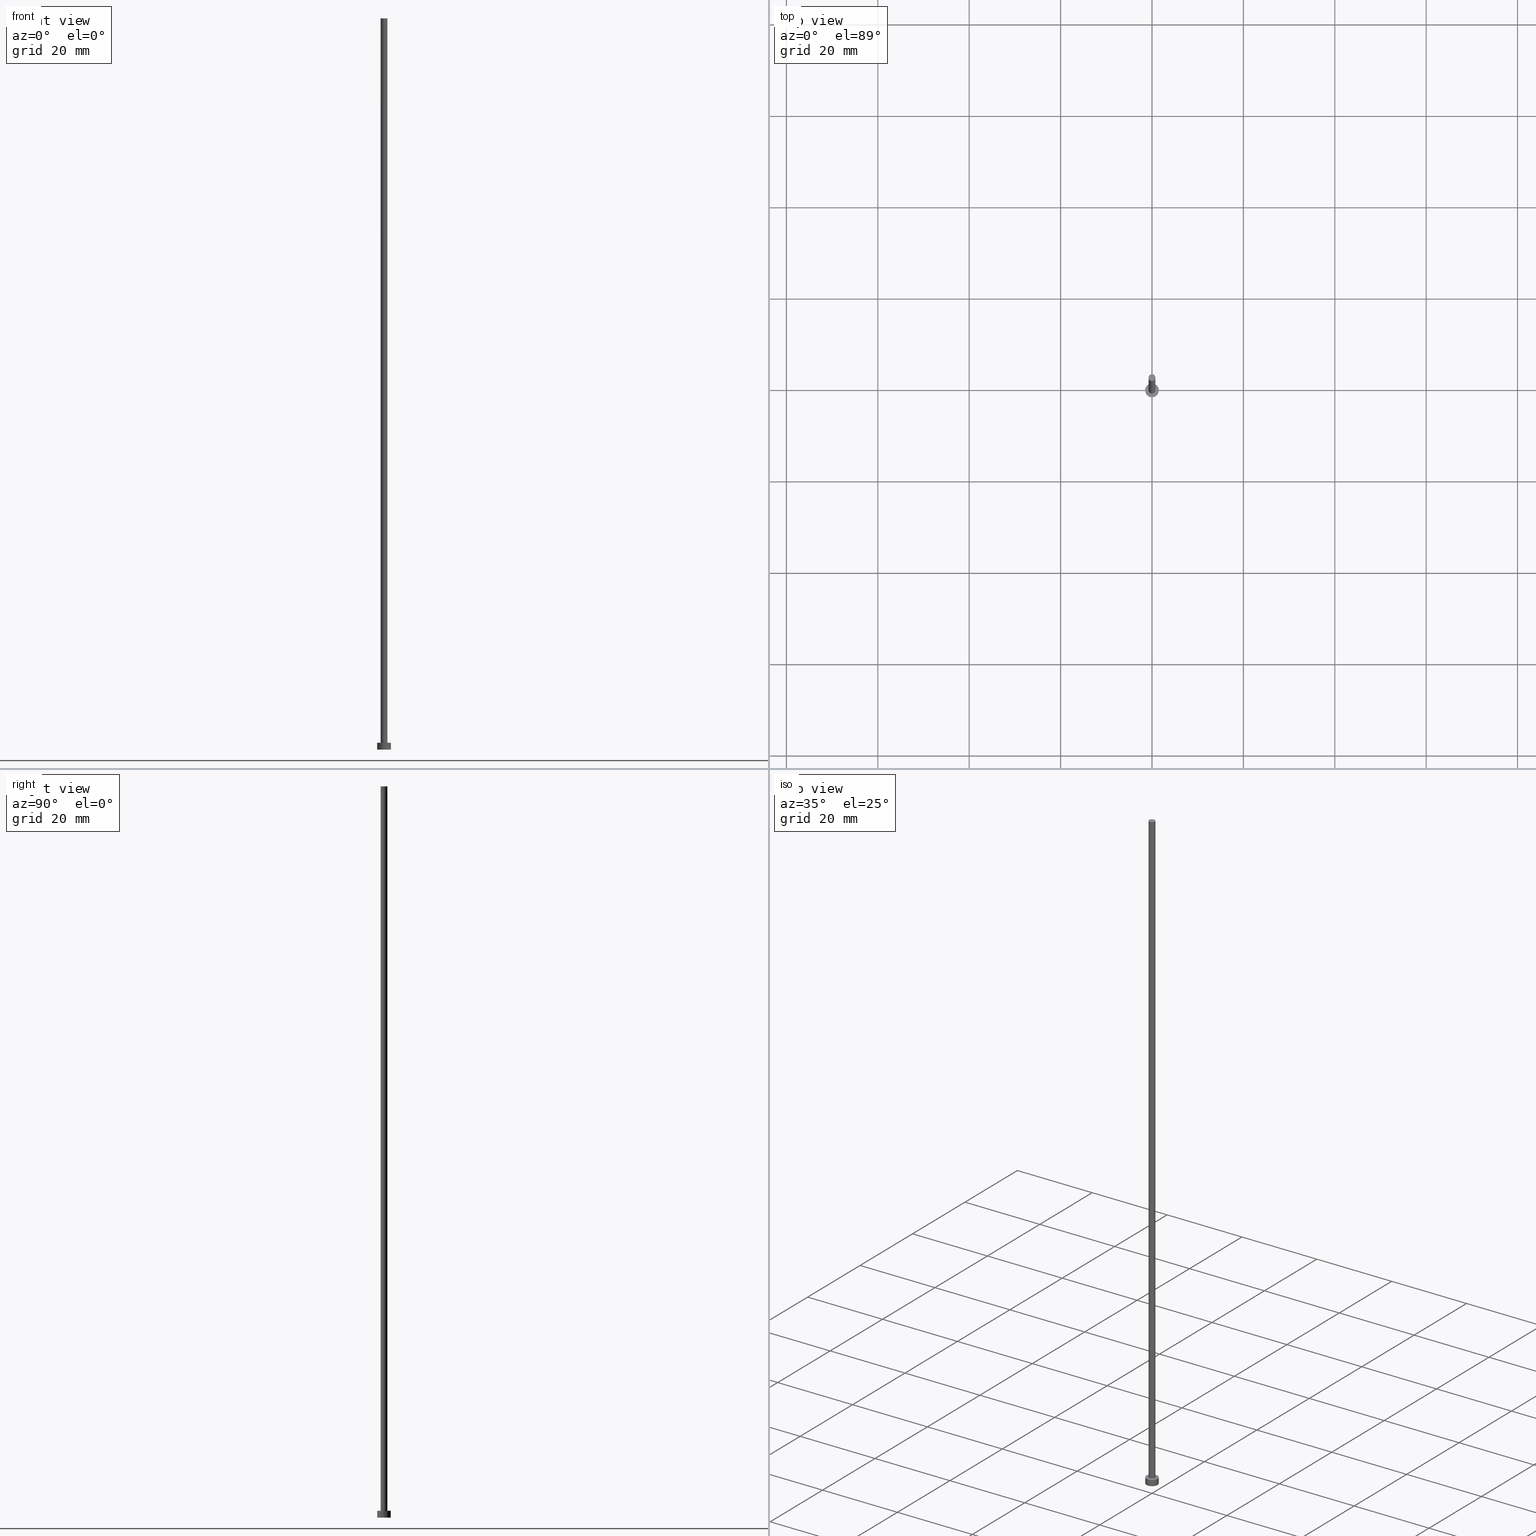
[diagram: canonical four-view strip — front | top / right | iso, engineering-drawing reading convention]
A machine part, canonical four-view strip (front | top / right | iso — engineering-drawing reading convention). The complete STEP part file that produces these views, byte-faithful:
ISO-10303-21;
HEADER;
FILE_DESCRIPTION (( 'STEP AP203' ),
    '1' );
FILE_NAME ('0eac.STEP',
    '2023-02-13T15:24:40',
    ( '' ),
    ( '' ),
    'SwSTEP 2.0',
    'SolidWorks 2019',
    '' );
FILE_SCHEMA (( 'CONFIG_CONTROL_DESIGN' ));
ENDSEC;

DATA;
#1 = ORIENTED_EDGE ( 'NONE', *, *, #5, .F. ) ;
#2 = CALENDAR_DATE ( 2023, 13, 2 ) ;
#3 = CARTESIAN_POINT ( 'NONE',  ( 0.000000000000000000, 0.000000000000000000, 1.500000000000000000 ) ) ;
#4 = EDGE_LOOP ( 'NONE', ( #196, #120, #92, #66 ) ) ;
#5 = EDGE_CURVE ( 'NONE', #94, #98, #141, .T. ) ;
#6 = DIRECTION ( 'NONE',  ( 1.000000000000000000, 0.000000000000000000, 0.000000000000000000 ) ) ;
#7 = CARTESIAN_POINT ( 'NONE',  ( 0.000000000000000000, 0.000000000000000000, 1.500000000000000000 ) ) ;
#8 = DATE_TIME_ROLE ( 'creation_date' ) ;
#9 = PLANE ( 'NONE',  #139 ) ;
#10 = AXIS2_PLACEMENT_3D ( 'NONE', #171, #217, #146 ) ;
#11 = PERSON_AND_ORGANIZATION_ROLE ( 'creator' ) ;
#12 = LOCAL_TIME ( 16, 24, 40.00000000000000000, #163 ) ;
#13 = PRODUCT ( '0eac', '0eac', '', ( #14 ) ) ;
#14 = MECHANICAL_CONTEXT ( 'NONE', #130, 'mechanical' ) ;
#15 = FACE_OUTER_BOUND ( 'NONE', #236, .T. ) ;
#16 = ORIENTED_EDGE ( 'NONE', *, *, #170, .F. ) ;
#17 = APPROVAL ( #55, 'NEUR�EN�' ) ;
#18 = DIRECTION ( 'NONE',  ( -0.000000000000000000, -0.000000000000000000, -1.000000000000000000 ) ) ;
#19 = DIRECTION ( 'NONE',  ( -0.000000000000000000, -0.000000000000000000, -1.000000000000000000 ) ) ;
#20 =( NAMED_UNIT ( * ) SI_UNIT ( $, .STERADIAN. ) SOLID_ANGLE_UNIT ( ) );
#21 = ORIENTED_EDGE ( 'NONE', *, *, #160, .T. ) ;
#22 = ADVANCED_FACE ( 'NONE', ( #115 ), #203, .T. ) ;
#23 = DESIGN_CONTEXT ( 'detailed design', #143, 'design' ) ;
#24 = DIRECTION ( 'NONE',  ( 1.000000000000000000, 0.000000000000000000, 0.000000000000000000 ) ) ;
#25 = AXIS2_PLACEMENT_3D ( 'NONE', #67, #84, #43 ) ;
#26 = CARTESIAN_POINT ( 'NONE',  ( 0.000000000000000000, 0.000000000000000000, 0.000000000000000000 ) ) ;
#27 = VECTOR ( 'NONE', #69, 1000.000000000000000 ) ;
#28 = FACE_OUTER_BOUND ( 'NONE', #4, .T. ) ;
#29 = CC_DESIGN_APPROVAL ( #220, ( #229 ) ) ;
#30 = AXIS2_PLACEMENT_3D ( 'NONE', #26, #232, #6 ) ;
#31 = PERSON_AND_ORGANIZATION ( #122, #144 ) ;
#32 = AXIS2_PLACEMENT_3D ( 'NONE', #7, #190, #86 ) ;
#33 = CALENDAR_DATE ( 2023, 13, 2 ) ;
#34 = ORIENTED_EDGE ( 'NONE', *, *, #208, .T. ) ;
#35 = CC_DESIGN_PERSON_AND_ORGANIZATION_ASSIGNMENT ( #81, #159, ( #229 ) ) ;
#36 = CARTESIAN_POINT ( 'NONE',  ( 0.000000000000000000, 0.000000000000000000, 160.0000000000000000 ) ) ;
#37 = DIRECTION ( 'NONE',  ( 1.000000000000000000, 0.000000000000000000, 0.000000000000000000 ) ) ;
#38 = EDGE_CURVE ( 'NONE', #133, #119, #89, .T. ) ;
#39 = ORIENTED_EDGE ( 'NONE', *, *, #38, .T. ) ;
#40 = APPROVAL_DATE_TIME ( #158, #17 ) ;
#41 = APPROVAL_PERSON_ORGANIZATION ( #199, #172, #78 ) ;
#42 = APPROVAL_STATUS ( 'not_yet_approved' ) ;
#43 = DIRECTION ( 'NONE',  ( -1.000000000000000000, 0.000000000000000000, 0.000000000000000000 ) ) ;
#44 = CYLINDRICAL_SURFACE ( 'NONE', #213, 0.7500000000000001110 ) ;
#45 = CIRCLE ( 'NONE', #250, 1.500000000000000222 ) ;
#46 = APPROVAL_DATE_TIME ( #231, #220 ) ;
#47 = FACE_OUTER_BOUND ( 'NONE', #135, .T. ) ;
#48 = ADVANCED_FACE ( 'NONE', ( #162 ), #44, .T. ) ;
#49 = LINE ( 'NONE', #194, #173 ) ;
#50 = CARTESIAN_POINT ( 'NONE',  ( -0.7500000000000001110, 0.000000000000000000, 160.0000000000000000 ) ) ;
#51 = LINE ( 'NONE', #137, #151 ) ;
#52 = LOCAL_TIME ( 16, 24, 40.00000000000000000, #138 ) ;
#53 = DIRECTION ( 'NONE',  ( 1.000000000000000000, 0.000000000000000000, 0.000000000000000000 ) ) ;
#54 = CC_DESIGN_PERSON_AND_ORGANIZATION_ASSIGNMENT ( #125, #100, ( #13 ) ) ;
#55 = APPROVAL_STATUS ( 'not_yet_approved' ) ;
#56 = CARTESIAN_POINT ( 'NONE',  ( 0.000000000000000000, 0.000000000000000000, 0.000000000000000000 ) ) ;
#57 = ORIENTED_EDGE ( 'NONE', *, *, #193, .F. ) ;
#58 = CALENDAR_DATE ( 2023, 13, 2 ) ;
#59 = LOCAL_TIME ( 16, 24, 40.00000000000000000, #219 ) ;
#60 = CIRCLE ( 'NONE', #10, 0.7500000000000001110 ) ;
#61 = PRODUCT_DEFINITION_FORMATION_WITH_SPECIFIED_SOURCE ( 'LIBOVOLN�', '', #13, .NOT_KNOWN. ) ;
#62 = DIRECTION ( 'NONE',  ( -1.000000000000000000, 0.000000000000000000, 0.000000000000000000 ) ) ;
#63 = CC_DESIGN_PERSON_AND_ORGANIZATION_ASSIGNMENT ( #93, #114, ( #61 ) ) ;
#64 = CARTESIAN_POINT ( 'NONE',  ( -1.500000000000000222, 0.000000000000000000, 0.000000000000000000 ) ) ;
#65 = AXIS2_PLACEMENT_3D ( 'NONE', #252, #150, #235 ) ;
#66 = ORIENTED_EDGE ( 'NONE', *, *, #192, .F. ) ;
#67 = CARTESIAN_POINT ( 'NONE',  ( 0.000000000000000000, 0.000000000000000000, 1.500000000000000000 ) ) ;
#68 = ADVANCED_FACE ( 'NONE', ( #28 ), #140, .T. ) ;
#69 = DIRECTION ( 'NONE',  ( -0.000000000000000000, -0.000000000000000000, -1.000000000000000000 ) ) ;
#70 = CARTESIAN_POINT ( 'NONE',  ( 0.000000000000000000, 0.000000000000000000, 160.0000000000000000 ) ) ;
#71 = PERSON_AND_ORGANIZATION ( #122, #144 ) ;
#72 = ORIENTED_EDGE ( 'NONE', *, *, #38, .F. ) ;
#73 = ORIENTED_EDGE ( 'NONE', *, *, #170, .T. ) ;
#74 = DATE_TIME_ROLE ( 'classification_date' ) ;
#75 = DIRECTION ( 'NONE',  ( 1.000000000000000000, 0.000000000000000000, 0.000000000000000000 ) ) ;
#76 = DIRECTION ( 'NONE',  ( 1.000000000000000000, 0.000000000000000000, 0.000000000000000000 ) ) ;
#77 = ORIENTED_EDGE ( 'NONE', *, *, #169, .T. ) ;
#78 = APPROVAL_ROLE ( '' ) ;
#79 = ORIENTED_EDGE ( 'NONE', *, *, #160, .F. ) ;
#80 = AXIS2_PLACEMENT_3D ( 'NONE', #218, #113, #24 ) ;
#81 = PERSON_AND_ORGANIZATION ( #122, #144 ) ;
#82 = CC_DESIGN_SECURITY_CLASSIFICATION ( #206, ( #61 ) ) ;
#83 = PERSON_AND_ORGANIZATION ( #122, #144 ) ;
#84 = DIRECTION ( 'NONE',  ( -0.000000000000000000, -0.000000000000000000, -1.000000000000000000 ) ) ;
#85 = ORIENTED_EDGE ( 'NONE', *, *, #193, .T. ) ;
#86 = DIRECTION ( 'NONE',  ( 1.000000000000000000, 0.000000000000000000, 0.000000000000000000 ) ) ;
#87 = DIRECTION ( 'NONE',  ( 1.000000000000000000, 0.000000000000000000, -0.000000000000000000 ) ) ;
#88 = CARTESIAN_POINT ( 'NONE',  ( 0.000000000000000000, 0.000000000000000000, 0.000000000000000000 ) ) ;
#89 = CIRCLE ( 'NONE', #209, 0.7500000000000001110 ) ;
#90 = CLOSED_SHELL ( 'NONE', ( #48, #68, #22, #165, #186, #155, #111 ) ) ;
#91 = CIRCLE ( 'NONE', #255, 0.7500000000000001110 ) ;
#92 = ORIENTED_EDGE ( 'NONE', *, *, #103, .T. ) ;
#93 = PERSON_AND_ORGANIZATION ( #122, #144 ) ;
#94 = VERTEX_POINT ( 'NONE', #64 ) ;
#95 = VECTOR ( 'NONE', #145, 1000.000000000000000 ) ;
#96 = DIRECTION ( 'NONE',  ( 0.000000000000000000, 0.000000000000000000, 1.000000000000000000 ) ) ;
#97 = CARTESIAN_POINT ( 'NONE',  ( -1.500000000000000222, 0.000000000000000000, 1.500000000000000000 ) ) ;
#98 = VERTEX_POINT ( 'NONE', #123 ) ;
#99 = ORIENTED_EDGE ( 'NONE', *, *, #5, .T. ) ;
#100 = PERSON_AND_ORGANIZATION_ROLE ( 'design_owner' ) ;
#101 = DIRECTION ( 'NONE',  ( -0.000000000000000000, -0.000000000000000000, -1.000000000000000000 ) ) ;
#102 = CARTESIAN_POINT ( 'NONE',  ( -0.7500000000000001110, 0.000000000000000000, 1.500000000000000000 ) ) ;
#103 = EDGE_CURVE ( 'NONE', #98, #94, #248, .T. ) ;
#104 = DIRECTION ( 'NONE',  ( 0.000000000000000000, 0.000000000000000000, 1.000000000000000000 ) ) ;
#105 = PRODUCT_RELATED_PRODUCT_CATEGORY ( 'detail', '', ( #13 ) ) ;
#106 = DIRECTION ( 'NONE',  ( 0.000000000000000000, 0.000000000000000000, 1.000000000000000000 ) ) ;
#107 = DIRECTION ( 'NONE',  ( -0.000000000000000000, -0.000000000000000000, -1.000000000000000000 ) ) ;
#108 = MANIFOLD_SOLID_BREP ( 'P�idat vysunut�m3', #90 ) ;
#109 =( GEOMETRIC_REPRESENTATION_CONTEXT ( 3 ) GLOBAL_UNCERTAINTY_ASSIGNED_CONTEXT ( ( #127 ) ) GLOBAL_UNIT_ASSIGNED_CONTEXT ( ( #214, #156, #20 ) ) REPRESENTATION_CONTEXT ( 'NONE', 'WORKASPACE' ) );
#110 = FACE_OUTER_BOUND ( 'NONE', #242, .T. ) ;
#111 = ADVANCED_FACE ( 'NONE', ( #47 ), #128, .T. ) ;
#112 = DATE_AND_TIME ( #33, #59 ) ;
#113 = DIRECTION ( 'NONE',  ( 0.000000000000000000, 0.000000000000000000, 1.000000000000000000 ) ) ;
#114 = PERSON_AND_ORGANIZATION_ROLE ( 'design_supplier' ) ;
#115 = FACE_OUTER_BOUND ( 'NONE', #142, .T. ) ;
#116 = APPROVAL_STATUS ( 'not_yet_approved' ) ;
#117 = CC_DESIGN_DATE_AND_TIME_ASSIGNMENT ( #112, #74, ( #206 ) ) ;
#118 = CARTESIAN_POINT ( 'NONE',  ( 1.500000000000000222, 1.836970198721030181E-16, 1.500000000000000000 ) ) ;
#119 = VERTEX_POINT ( 'NONE', #211 ) ;
#120 = ORIENTED_EDGE ( 'NONE', *, *, #246, .T. ) ;
#121 = CARTESIAN_POINT ( 'NONE',  ( 0.000000000000000000, 0.000000000000000000, 160.0000000000000000 ) ) ;
#122 = PERSON ( 'NEUR�EN�', 'NEUR�EN�', 'NEUR�EN�', ('NEUR�EN�'), ('NEUR�EN�'), ('NEUR�EN�') ) ;
#123 = CARTESIAN_POINT ( 'NONE',  ( 1.500000000000000222, 1.836970198721030181E-16, 0.000000000000000000 ) ) ;
#124 = AXIS2_PLACEMENT_3D ( 'NONE', #126, #104, #207 ) ;
#125 = PERSON_AND_ORGANIZATION ( #122, #144 ) ;
#126 = CARTESIAN_POINT ( 'NONE',  ( 0.000000000000000000, 0.000000000000000000, 160.0000000000000000 ) ) ;
#127 = UNCERTAINTY_MEASURE_WITH_UNIT (LENGTH_MEASURE( 1.000000000000000082E-05 ), #214, 'distance_accuracy_value', 'NONE');
#128 = PLANE ( 'NONE',  #124 ) ;
#129 = CC_DESIGN_APPROVAL ( #17, ( #206 ) ) ;
#130 = APPLICATION_CONTEXT ( 'configuration controlled 3d designs of mechanical parts and assemblies' ) ;
#131 = DIRECTION ( 'NONE',  ( -1.000000000000000000, 0.000000000000000000, 0.000000000000000000 ) ) ;
#132 = ORIENTED_EDGE ( 'NONE', *, *, #183, .F. ) ;
#133 = VERTEX_POINT ( 'NONE', #50 ) ;
#134 = DATE_AND_TIME ( #58, #243 ) ;
#135 = EDGE_LOOP ( 'NONE', ( #39, #21 ) ) ;
#136 = DIRECTION ( 'NONE',  ( -1.000000000000000000, 0.000000000000000000, 0.000000000000000000 ) ) ;
#137 = CARTESIAN_POINT ( 'NONE',  ( 0.7500000000000001110, 9.184850993605150903E-17, 160.0000000000000000 ) ) ;
#138 = COORDINATED_UNIVERSAL_TIME_OFFSET ( 1, 0, .AHEAD. ) ;
#139 = AXIS2_PLACEMENT_3D ( 'NONE', #88, #106, #87 ) ;
#140 = CYLINDRICAL_SURFACE ( 'NONE', #25, 1.500000000000000222 ) ;
#141 = CIRCLE ( 'NONE', #240, 1.500000000000000222 ) ;
#142 = EDGE_LOOP ( 'NONE', ( #204, #16, #254, #99 ) ) ;
#143 = APPLICATION_CONTEXT ( 'configuration controlled 3d designs of mechanical parts and assemblies' ) ;
#144 = ORGANIZATION ( 'NEUR�EN�', 'NEUR�EN�', '' ) ;
#145 = DIRECTION ( 'NONE',  ( -0.000000000000000000, -0.000000000000000000, -1.000000000000000000 ) ) ;
#146 = DIRECTION ( 'NONE',  ( 1.000000000000000000, 0.000000000000000000, 0.000000000000000000 ) ) ;
#147 = FACE_OUTER_BOUND ( 'NONE', #154, .T. ) ;
#148 = APPROVAL_PERSON_ORGANIZATION ( #237, #17, #187 ) ;
#149 = PERSON_AND_ORGANIZATION_ROLE ( 'classification_officer' ) ;
#150 = DIRECTION ( 'NONE',  ( 0.000000000000000000, 0.000000000000000000, 1.000000000000000000 ) ) ;
#151 = VECTOR ( 'NONE', #19, 1000.000000000000000 ) ;
#152 = CC_DESIGN_APPROVAL ( #172, ( #61 ) ) ;
#153 = PRODUCT_DEFINITION_SHAPE ( 'NONE', 'NONE',  #229 ) ;
#154 = EDGE_LOOP ( 'NONE', ( #216, #72, #34, #233 ) ) ;
#155 = ADVANCED_FACE ( 'NONE', ( #147 ), #176, .T. ) ;
#156 =( NAMED_UNIT ( * ) PLANE_ANGLE_UNIT ( ) SI_UNIT ( $, .RADIAN. ) );
#157 = DIRECTION ( 'NONE',  ( 1.000000000000000000, 0.000000000000000000, 0.000000000000000000 ) ) ;
#158 = DATE_AND_TIME ( #224, #12 ) ;
#159 = PERSON_AND_ORGANIZATION_ROLE ( 'creator' ) ;
#160 = EDGE_CURVE ( 'NONE', #119, #133, #60, .T. ) ;
#161 = CC_DESIGN_PERSON_AND_ORGANIZATION_ASSIGNMENT ( #31, #11, ( #61 ) ) ;
#162 = FACE_OUTER_BOUND ( 'NONE', #185, .T. ) ;
#163 = COORDINATED_UNIVERSAL_TIME_OFFSET ( 1, 0, .AHEAD. ) ;
#164 = APPLICATION_PROTOCOL_DEFINITION ( 'international standard', 'config_control_design', 1994, #143 ) ;
#165 = ADVANCED_FACE ( 'NONE', ( #215, #110 ), #198, .T. ) ;
#166 = APPROVAL_ROLE ( '' ) ;
#167 = CARTESIAN_POINT ( 'NONE',  ( -1.500000000000000222, 0.000000000000000000, 1.500000000000000000 ) ) ;
#168 = LOCAL_TIME ( 16, 24, 40.00000000000000000, #188 ) ;
#169 = EDGE_CURVE ( 'NONE', #119, #228, #51, .T. ) ;
#170 = EDGE_CURVE ( 'NONE', #182, #179, #45, .T. ) ;
#171 = CARTESIAN_POINT ( 'NONE',  ( 0.000000000000000000, 0.000000000000000000, 160.0000000000000000 ) ) ;
#172 = APPROVAL ( #116, 'NEUR�EN�' ) ;
#173 = VECTOR ( 'NONE', #177, 1000.000000000000000 ) ;
#174 = CARTESIAN_POINT ( 'NONE',  ( 0.7500000000000001110, 9.184850993605150903E-17, 1.500000000000000000 ) ) ;
#175 = CC_DESIGN_DATE_AND_TIME_ASSIGNMENT ( #210, #8, ( #229 ) ) ;
#176 = CYLINDRICAL_SURFACE ( 'NONE', #178, 0.7500000000000001110 ) ;
#177 = DIRECTION ( 'NONE',  ( -0.000000000000000000, -0.000000000000000000, -1.000000000000000000 ) ) ;
#178 = AXIS2_PLACEMENT_3D ( 'NONE', #70, #107, #131 ) ;
#179 = VERTEX_POINT ( 'NONE', #118 ) ;
#180 = AXIS2_PLACEMENT_3D ( 'NONE', #201, #181, #75 ) ;
#181 = DIRECTION ( 'NONE',  ( 0.000000000000000000, 0.000000000000000000, 1.000000000000000000 ) ) ;
#182 = VERTEX_POINT ( 'NONE', #97 ) ;
#183 = EDGE_CURVE ( 'NONE', #245, #228, #91, .T. ) ;
#184 = CARTESIAN_POINT ( 'NONE',  ( 0.000000000000000000, 0.000000000000000000, 1.500000000000000000 ) ) ;
#185 = EDGE_LOOP ( 'NONE', ( #79, #77, #85, #239 ) ) ;
#186 = ADVANCED_FACE ( 'NONE', ( #15 ), #9, .F. ) ;
#187 = APPROVAL_ROLE ( '' ) ;
#188 = COORDINATED_UNIVERSAL_TIME_OFFSET ( 1, 0, .AHEAD. ) ;
#189 = LINE ( 'NONE', #191, #95 ) ;
#190 = DIRECTION ( 'NONE',  ( 0.000000000000000000, 0.000000000000000000, 1.000000000000000000 ) ) ;
#191 = CARTESIAN_POINT ( 'NONE',  ( 1.500000000000000222, 1.836970198721030181E-16, 1.500000000000000000 ) ) ;
#192 = EDGE_CURVE ( 'NONE', #182, #94, #249, .T. ) ;
#193 = EDGE_CURVE ( 'NONE', #228, #245, #202, .T. ) ;
#194 = CARTESIAN_POINT ( 'NONE',  ( -0.7500000000000001110, 0.000000000000000000, 160.0000000000000000 ) ) ;
#195 = AXIS2_PLACEMENT_3D ( 'NONE', #241, #18, #136 ) ;
#196 = ORIENTED_EDGE ( 'NONE', *, *, #244, .F. ) ;
#197 = CIRCLE ( 'NONE', #80, 1.500000000000000222 ) ;
#198 = PLANE ( 'NONE',  #65 ) ;
#199 = PERSON_AND_ORGANIZATION ( #122, #144 ) ;
#200 = DIRECTION ( 'NONE',  ( 0.000000000000000000, 0.000000000000000000, 1.000000000000000000 ) ) ;
#201 = CARTESIAN_POINT ( 'NONE',  ( 0.000000000000000000, 0.000000000000000000, 0.000000000000000000 ) ) ;
#202 = CIRCLE ( 'NONE', #32, 0.7500000000000001110 ) ;
#203 = CYLINDRICAL_SURFACE ( 'NONE', #195, 1.500000000000000222 ) ;
#204 = ORIENTED_EDGE ( 'NONE', *, *, #246, .F. ) ;
#205 = CC_DESIGN_PERSON_AND_ORGANIZATION_ASSIGNMENT ( #71, #149, ( #206 ) ) ;
#206 = SECURITY_CLASSIFICATION ( '', '', #251 ) ;
#207 = DIRECTION ( 'NONE',  ( 1.000000000000000000, 0.000000000000000000, -0.000000000000000000 ) ) ;
#208 = EDGE_CURVE ( 'NONE', #133, #245, #49, .T. ) ;
#209 = AXIS2_PLACEMENT_3D ( 'NONE', #36, #96, #157 ) ;
#210 = DATE_AND_TIME ( #227, #52 ) ;
#211 = CARTESIAN_POINT ( 'NONE',  ( 0.7500000000000001110, 9.184850993605150903E-17, 160.0000000000000000 ) ) ;
#212 = APPROVAL_DATE_TIME ( #134, #172 ) ;
#213 = AXIS2_PLACEMENT_3D ( 'NONE', #121, #101, #62 ) ;
#214 =( LENGTH_UNIT ( ) NAMED_UNIT ( * ) SI_UNIT ( .MILLI., .METRE. ) );
#215 = FACE_BOUND ( 'NONE', #253, .T. ) ;
#216 = ORIENTED_EDGE ( 'NONE', *, *, #169, .F. ) ;
#217 = DIRECTION ( 'NONE',  ( 0.000000000000000000, 0.000000000000000000, 1.000000000000000000 ) ) ;
#218 = CARTESIAN_POINT ( 'NONE',  ( 0.000000000000000000, 0.000000000000000000, 1.500000000000000000 ) ) ;
#219 = COORDINATED_UNIVERSAL_TIME_OFFSET ( 1, 0, .AHEAD. ) ;
#220 = APPROVAL ( #42, 'NEUR�EN�' ) ;
#221 = ADVANCED_BREP_SHAPE_REPRESENTATION ( '0eac', ( #108, #180 ), #109 ) ;
#222 = ORIENTED_EDGE ( 'NONE', *, *, #244, .T. ) ;
#223 = SHAPE_DEFINITION_REPRESENTATION ( #153, #221 ) ;
#224 = CALENDAR_DATE ( 2023, 13, 2 ) ;
#225 = DIRECTION ( 'NONE',  ( 0.000000000000000000, 0.000000000000000000, 1.000000000000000000 ) ) ;
#226 = DIRECTION ( 'NONE',  ( 0.000000000000000000, 0.000000000000000000, 1.000000000000000000 ) ) ;
#227 = CALENDAR_DATE ( 2023, 13, 2 ) ;
#228 = VERTEX_POINT ( 'NONE', #174 ) ;
#229 = PRODUCT_DEFINITION ( 'NEZN�M�', '', #61, #23 ) ;
#230 = ORIENTED_EDGE ( 'NONE', *, *, #103, .F. ) ;
#231 = DATE_AND_TIME ( #2, #168 ) ;
#232 = DIRECTION ( 'NONE',  ( 0.000000000000000000, 0.000000000000000000, 1.000000000000000000 ) ) ;
#233 = ORIENTED_EDGE ( 'NONE', *, *, #183, .T. ) ;
#234 = COORDINATED_UNIVERSAL_TIME_OFFSET ( 1, 0, .AHEAD. ) ;
#235 = DIRECTION ( 'NONE',  ( 1.000000000000000000, 0.000000000000000000, -0.000000000000000000 ) ) ;
#236 = EDGE_LOOP ( 'NONE', ( #1, #230 ) ) ;
#237 = PERSON_AND_ORGANIZATION ( #122, #144 ) ;
#238 = APPLICATION_PROTOCOL_DEFINITION ( 'international standard', 'config_control_design', 1994, #130 ) ;
#239 = ORIENTED_EDGE ( 'NONE', *, *, #208, .F. ) ;
#240 = AXIS2_PLACEMENT_3D ( 'NONE', #56, #226, #53 ) ;
#241 = CARTESIAN_POINT ( 'NONE',  ( 0.000000000000000000, 0.000000000000000000, 1.500000000000000000 ) ) ;
#242 = EDGE_LOOP ( 'NONE', ( #73, #222 ) ) ;
#243 = LOCAL_TIME ( 16, 24, 40.00000000000000000, #234 ) ;
#244 = EDGE_CURVE ( 'NONE', #179, #182, #197, .T. ) ;
#245 = VERTEX_POINT ( 'NONE', #102 ) ;
#246 = EDGE_CURVE ( 'NONE', #179, #98, #189, .T. ) ;
#247 = APPROVAL_PERSON_ORGANIZATION ( #83, #220, #166 ) ;
#248 = CIRCLE ( 'NONE', #30, 1.500000000000000222 ) ;
#249 = LINE ( 'NONE', #167, #27 ) ;
#250 = AXIS2_PLACEMENT_3D ( 'NONE', #184, #225, #37 ) ;
#251 = SECURITY_CLASSIFICATION_LEVEL ( 'unclassified' ) ;
#252 = CARTESIAN_POINT ( 'NONE',  ( 0.000000000000000000, 0.000000000000000000, 1.500000000000000000 ) ) ;
#253 = EDGE_LOOP ( 'NONE', ( #132, #57 ) ) ;
#254 = ORIENTED_EDGE ( 'NONE', *, *, #192, .T. ) ;
#255 = AXIS2_PLACEMENT_3D ( 'NONE', #3, #200, #76 ) ;
ENDSEC;
END-ISO-10303-21;
